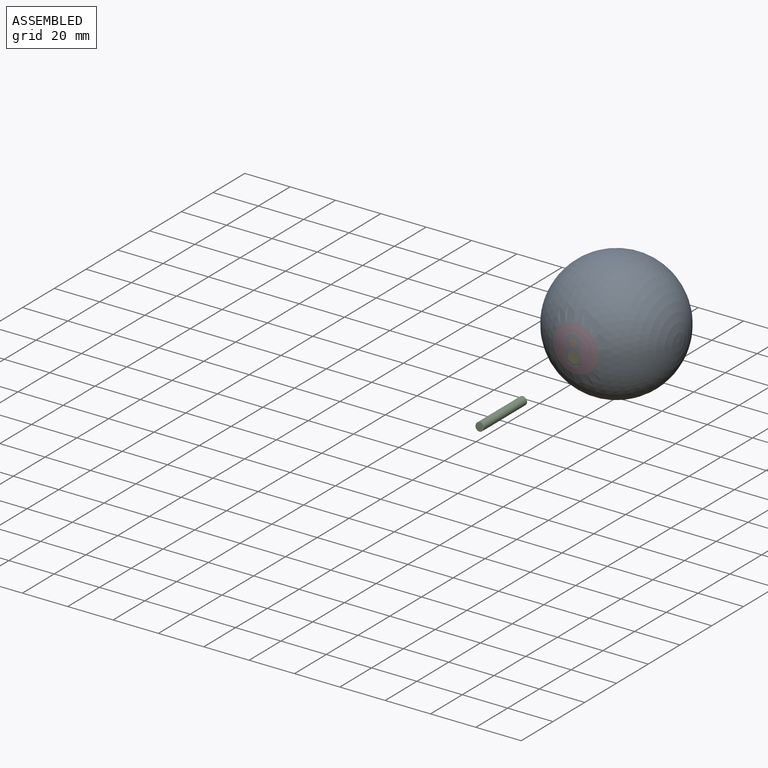
[diagram: assembled view]
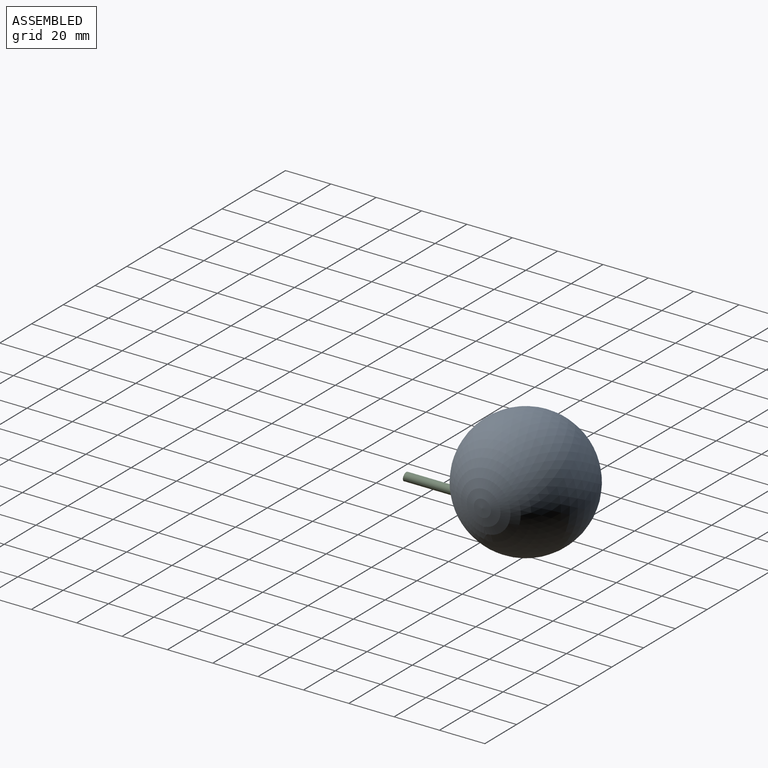
[diagram: assembled view, second angle]
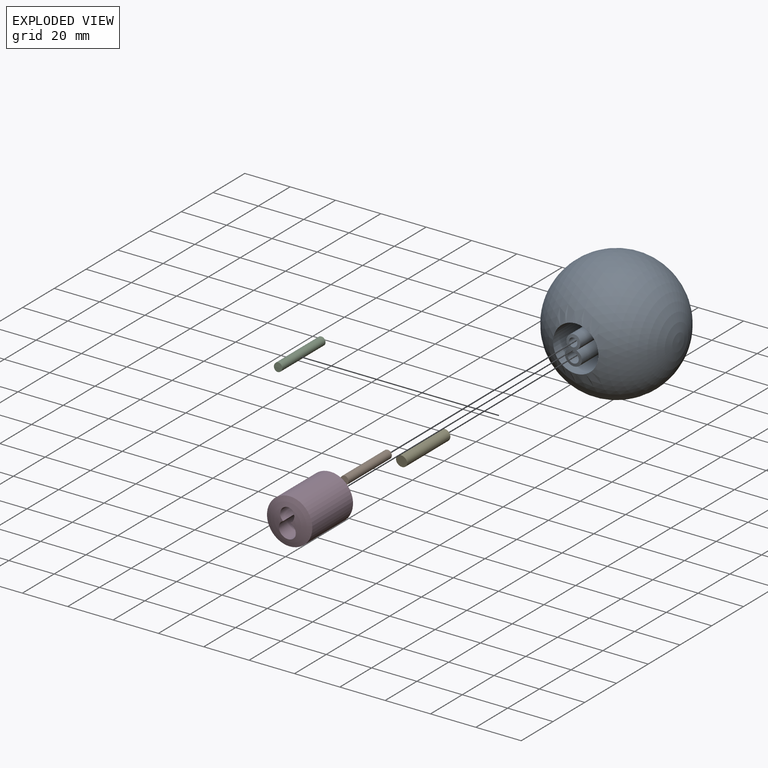
[diagram: exploded view]
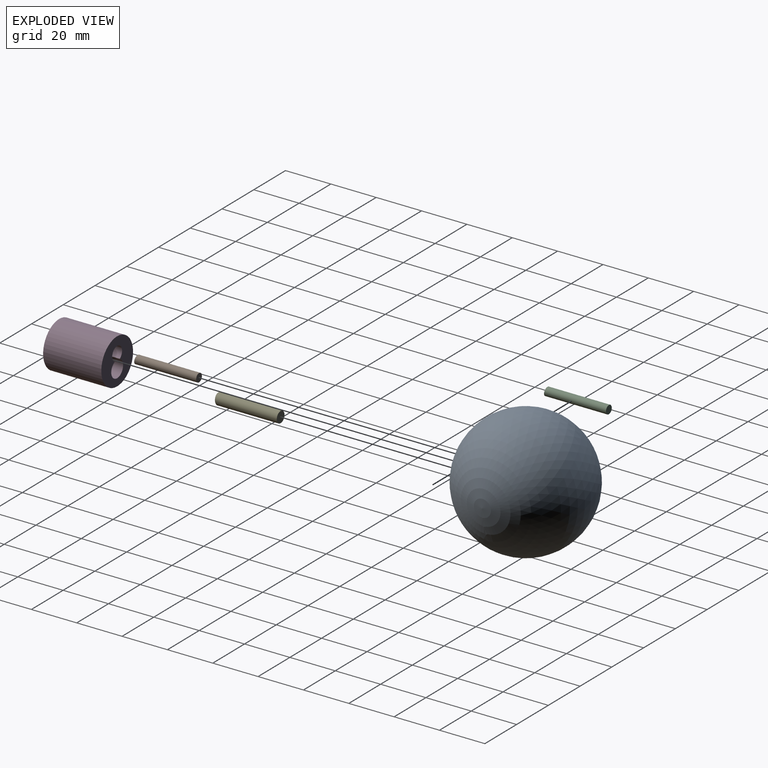
[diagram: exploded view, second angle]
ASSEMBLY  parts=5 mates=3
PART A: 10 faces, bbox 55.1x55.1x55.1 mm
  f0: sphere r=27.53mm, area 43.5mm2, adj f1,f2,f6,f8
  f1: cylinder r=3.1mm len=27.48mm, axis (0,1,0), area 438mm2, adj f0,f2,f4
  f2: cylinder r=3.73mm len=27.48mm, axis (0,1,0), area 545.6mm2, adj f0,f1,f4
  f3: cylinder r=10mm len=25.65mm, axis (0,1,0), area 1611.8mm2, adj f4,f5
  f4: plane 20x20mm, normal (0,-1,0), area 241.9mm2, adj f1,f2,f3
  f5: sphere r=27.53mm, area 9201mm2, adj f3
  f6: cylinder r=2.44mm len=27.53mm, axis (0,1,0), area 418.6mm2, adj f0,f7
  f7: plane 4.89x4.89mm, normal (0,-1,0), area 18.8mm2, adj f6
  f8: cylinder r=1.83mm len=27.5mm, axis (0,1,0), area 314.1mm2, adj f0,f9
  f9: plane 3.66x3.66mm, normal (0,-1,0), area 10.5mm2, adj f8
PART B: 3 faces, bbox 27.5x5.9x3.9 mm
  f0: cylinder r=1.83mm len=27.51mm, axis (1,0,0), area 314.2mm2, adj f1,f2
  f1: plane 3.66x3.66mm, normal (1,0,0), area 10.5mm2, adj f0
  f2: sphere r=27.53mm, area 10.6mm2, adj f0
PART C: same geometry as B
PART D: 5 faces, bbox 27.5x20x20 mm
  f0: plane 20x20mm, normal (1,0,0), area 241.9mm2, adj f1,f3,f4
  f1: cylinder r=10mm len=25.65mm, axis (1,0,0), area 1611.8mm2, adj f0,f2
  f2: sphere r=27.53mm, area 252.3mm2, adj f1,f3,f4
  f3: cylinder r=3.73mm len=27.49mm, axis (1,0,0), area 545.5mm2, adj f0,f2,f4
  f4: cylinder r=3.1mm len=27.49mm, axis (1,0,0), area 438.2mm2, adj f0,f2,f3
PART E: 3 faces, bbox 27.5x8.8x5.1 mm
  f0: plane 4.89x4.89mm, normal (1,0,0), area 18.8mm2, adj f1
  f1: cylinder r=2.44mm len=27.06mm, axis (1,0,0), area 415.4mm2, adj f0,f2
  f2: sphere r=27.53mm, area 18.9mm2, adj f1
PLACE A t=(-0.04,0,0.01)mm
PLACE B rot(axis=(0,0,1),90deg) t=(-0.04,0,0.08)mm
PLACE C rot(axis=(0,0,1),90deg) t=(-15.68,-36.54,-23.81)mm
PLACE D rot(axis=(0,0,1),90deg) t=(-0.04,0,-0.01)mm
PLACE E rot(axis=(0,0,1),90deg) t=(-0.04,-0.01,0.08)mm
MATE fastened A.f6 <-> E.f1  axis (0,1,0) through (-0.04,-27.7,-2.95)mm
MATE fastened A.f7 <-> D.f0  axis (0,-1,0) through (-0.04,0,0.15)mm
MATE fastened B.f0 <-> A.f8  axis (0,1,0) through (-0.04,-27.67,3.11)mm
